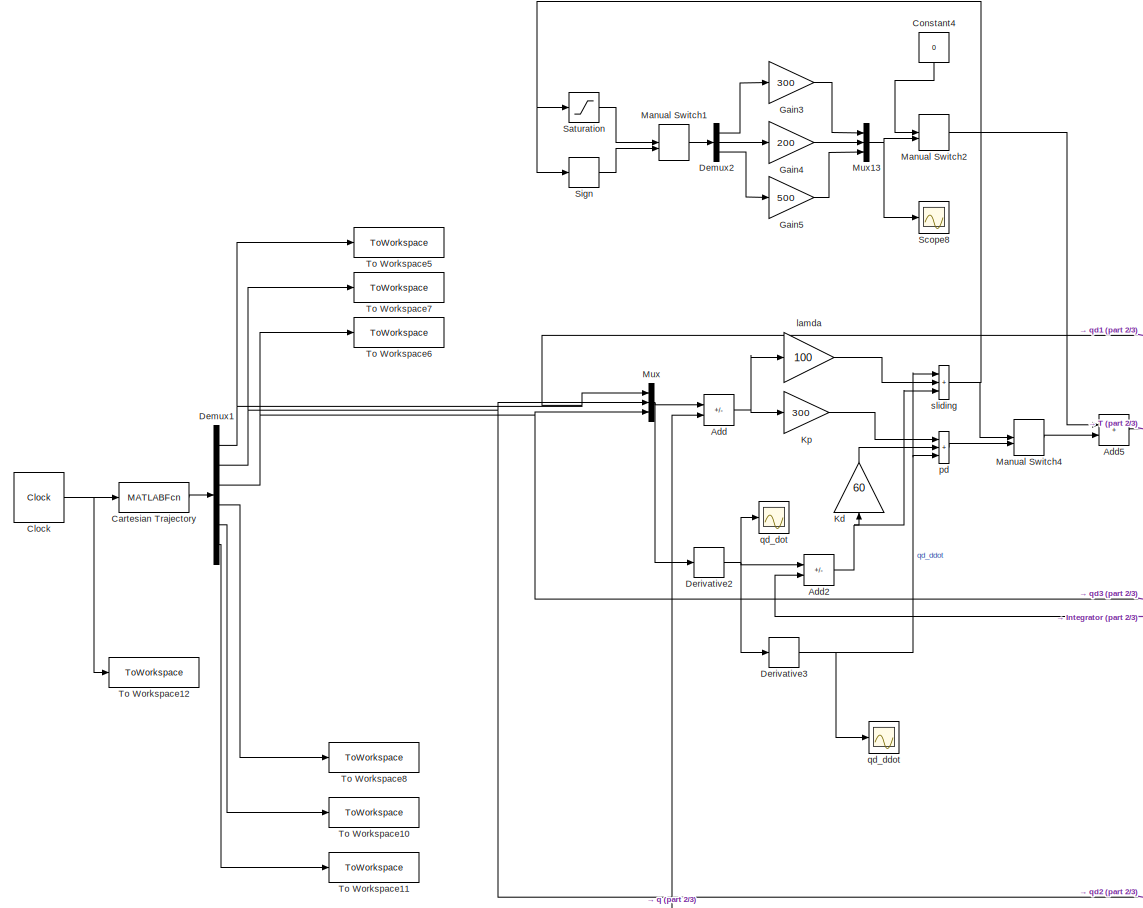
[diagram: root canvas - part 1/3, left side, full height]
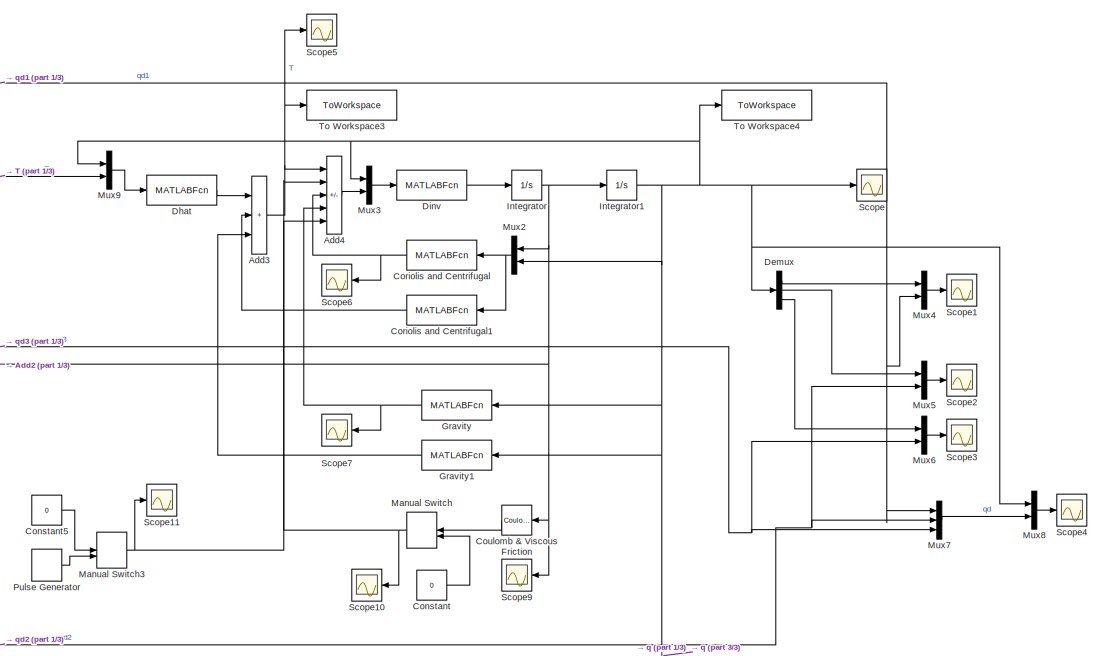
[diagram: root canvas - part 2/3, middle right region]
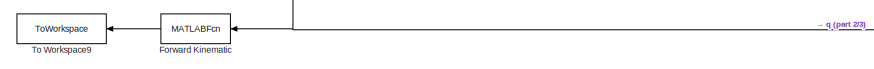
[diagram: root canvas - part 3/3, bottom center region]
MODEL slx_8cb4943e1e25
KIND model
CONFIG AbsTol = auto
CONFIG EnableMultiTasking = off
CONFIG FixedStep = auto
CONFIG MaxStep = auto
CONFIG MinStep = auto
CONFIG RelTol = 1e-3
CONFIG SampleTimeConstraint = Unconstrained
CONFIG SolverName = ode3
CONFIG StartTime = 0.0
CONFIG StopTime = 2*pi
BLOCK [Sum] Add
  IconShape = rectangular
  Inputs = +-
BLOCK [Sum] Add2
  IconShape = rectangular
  Inputs = +-
BLOCK [Sum] Add3
  IconShape = rectangular
  Inputs = +++
BLOCK [Sum] Add4
  IconShape = rectangular
  Inputs = +----
BLOCK [Sum] Add5
  IconShape = rectangular
BLOCK [MATLABFcn] Cartesian Trajectory
  MATLABFcn = Cartesian_trajectory(u)
  Output1D = off
  OutputDimensions = 6
BLOCK [Clock] Clock
  Decimation = 1
BLOCK [Constant] Constant
  Value = 0
BLOCK [Constant] Constant4
  NameLocation = left
  Value = 0
BLOCK [Constant] Constant5
  Value = 0
BLOCK [MATLABFcn] Coriolis and Centrifugal
  MATLABFcn = Coriolis3(u)
  Output1D = off
  OutputDimensions = 3
BLOCK [MATLABFcn] Coriolis and Centrifugal1
  MATLABFcn = Coriolis3(u)
  Output1D = off
  OutputDimensions = 3
BLOCK [Reference] Coulomb & Viscous Friction  REF=simulink/Discontinuities/Coulomb &
Viscous Friction
  SourceBlock = simulink/Discontinuities/Coulomb &\nViscous Friction
  SourceType = Coulombic and Viscous Friction
BLOCK [Demux] Demux
  Outputs = 3
BLOCK [Demux] Demux1
  Outputs = 6
BLOCK [Demux] Demux2
  Outputs = 3
BLOCK [Derivative] Derivative2
BLOCK [Derivative] Derivative3
BLOCK [MATLABFcn] Dhat
  MATLABFcn = Dhat3(u)
  Output1D = off
  OutputDimensions = 3
BLOCK [MATLABFcn] Dinv
  MATLABFcn = Dinv3(u)
  Output1D = off
  OutputDimensions = 3
BLOCK [MATLABFcn] Forward Kinematic
  MATLABFcn = Forward_kin3(u)
  Output1D = off
  OutputDimensions = 3
BLOCK [Gain] Gain3
  Gain = 300
BLOCK [Gain] Gain4
  Gain = 200
BLOCK [Gain] Gain5
  Gain = 500
BLOCK [MATLABFcn] Gravity
  MATLABFcn = Gravity3(u)
  Output1D = off
  OutputDimensions = 3
BLOCK [MATLABFcn] Gravity1
  MATLABFcn = Gravity3(u)
  Output1D = off
  OutputDimensions = 3
BLOCK [Integrator] Integrator
  InitialCondition = [0;0;0];
BLOCK [Integrator] Integrator1
  InitialCondition = [0.9587;0.7246;-1.1694]
BLOCK [Gain] Kd
  Gain = 60
  NameLocation = right
BLOCK [Gain] Kp
  Gain = 300
BLOCK [ManualSwitch] Manual Switch
BLOCK [ManualSwitch] Manual Switch1
BLOCK [ManualSwitch] Manual Switch2
  CurrentSetting = 0
BLOCK [ManualSwitch] Manual Switch3
  CurrentSetting = 0
BLOCK [ManualSwitch] Manual Switch4
BLOCK [Mux] Mux
  DisplayOption = bar
  Inputs = 3
BLOCK [Mux] Mux13
  DisplayOption = bar
  Inputs = 3
BLOCK [Mux] Mux2
  DisplayOption = bar
  Inputs = 2
BLOCK [Mux] Mux3
  DisplayOption = bar
  Inputs = 2
BLOCK [Mux] Mux4
  DisplayOption = bar
  Inputs = 2
BLOCK [Mux] Mux5
  DisplayOption = bar
  Inputs = 2
BLOCK [Mux] Mux6
  DisplayOption = bar
  Inputs = 2
BLOCK [Mux] Mux7
  DisplayOption = bar
  Inputs = 3
BLOCK [Mux] Mux8
  DisplayOption = bar
  Inputs = 2
BLOCK [Mux] Mux9
  DisplayOption = bar
  Inputs = 2
BLOCK [DiscretePulseGenerator] Pulse Generator
  Amplitude = 100
  PhaseDelay = 2
  PulseType = Time based
  PulseWidth = 2
BLOCK [Saturate] Saturation
  LowerLimit = -1
  UpperLimit = 1
  ZeroCross = off
BLOCK [Scope] Scope
  Floating = off
  NumInputPorts = 1
  ScopeSpecificationString = Simulink.scopes.TimeScopeBlockCfg('CurrentConfiguration', extmgr.ConfigurationSet(extmgr.Configuration('Core','General UI',true,'FigureColor',[1 1 1]),extmgr.Configuration('Core','Source UI',true),extmgr.Configuration('Sources','WiredSimulink',true),extmgr.Configuration('Visuals','Time Domain',true,'SerializedDisplays',{struct('MinYLimReal','-2.64533','MaxYLimReal','1.54519','YLabelReal','','MinYL...<+1563ch>
BLOCK [Scope] Scope1
  Floating = off
  NumInputPorts = 1
  ScopeSpecificationString = Simulink.scopes.TimeScopeBlockCfg('CurrentConfiguration', extmgr.ConfigurationSet(extmgr.Configuration('Core','General UI',true,'FigureColor',[1 1 1]),extmgr.Configuration('Core','Source UI',true),extmgr.Configuration('Sources','WiredSimulink',true,'DataLoggingVariableName','ScopeData1'),extmgr.Configuration('Visuals','Time Domain',true,'SerializedDisplays',{struct('MinYLimReal','-1.07654','MaxYLi...<+1728ch>
BLOCK [Scope] Scope10
  Floating = off
  NumInputPorts = 1
  ScopeSpecificationString = Simulink.scopes.TimeScopeBlockCfg('CurrentConfiguration', extmgr.ConfigurationSet(extmgr.Configuration('Core','General UI',true,'FigureColor',[1 1 1]),extmgr.Configuration('Core','Source UI',true),extmgr.Configuration('Sources','WiredSimulink',true,'DataLoggingVariableName','ScopeData3'),extmgr.Configuration('Visuals','Time Domain',true,'SerializedDisplays',{struct('MinYLimReal','-61.2897','MaxYLi...<+1570ch>
BLOCK [Scope] Scope11
  Floating = off
  NumInputPorts = 1
  ScopeSpecificationString = Simulink.scopes.TimeScopeBlockCfg('CurrentConfiguration', extmgr.ConfigurationSet(extmgr.Configuration('Core','General UI',true,'FigureColor',[1 1 1]),extmgr.Configuration('Core','Source UI',true),extmgr.Configuration('Sources','WiredSimulink',true,'DataLoggingVariableName','ScopeData4'),extmgr.Configuration('Visuals','Time Domain',true,'SerializedDisplays',{struct('MinYLimReal','-12.5','MaxYLimRe...<+1519ch>
BLOCK [Scope] Scope2
  Floating = off
  NumInputPorts = 1
  ScopeSpecificationString = Simulink.scopes.TimeScopeBlockCfg('CurrentConfiguration', extmgr.ConfigurationSet(extmgr.Configuration('Core','General UI',true,'FigureColor',[1 1 1]),extmgr.Configuration('Core','Source UI',true),extmgr.Configuration('Sources','WiredSimulink',true,'DataLoggingVariableName','ScopeData2'),extmgr.Configuration('Visuals','Time Domain',true,'SerializedDisplays',{struct('MinYLimReal','0.47796','MaxYLim...<+1622ch>
BLOCK [Scope] Scope3
  Floating = off
  NumInputPorts = 1
  ScopeSpecificationString = Simulink.scopes.TimeScopeBlockCfg('CurrentConfiguration', extmgr.ConfigurationSet(extmgr.Configuration('Core','General UI',true,'FigureColor',[1 1 1]),extmgr.Configuration('Core','Source UI',true),extmgr.Configuration('Sources','WiredSimulink',true,'DataLoggingVariableName','ScopeData3'),extmgr.Configuration('Visuals','Time Domain',true,'SerializedDisplays',{struct('MinYLimReal','-2.38745','MaxYLi...<+1627ch>
BLOCK [Scope] Scope4
  Floating = off
  NumInputPorts = 1
  ScopeSpecificationString = Simulink.scopes.TimeScopeBlockCfg('CurrentConfiguration', extmgr.ConfigurationSet(extmgr.Configuration('Core','General UI',true,'FigureColor',[1 1 1]),extmgr.Configuration('Core','Source UI',true),extmgr.Configuration('Sources','WiredSimulink',true,'DataLoggingVariableName','ScopeData1'),extmgr.Configuration('Visuals','Time Domain',true,'SerializedDisplays',{struct('MinYLimReal','-2.62439','MaxYLi...<+1932ch>
BLOCK [Scope] Scope5
  Floating = off
  NumInputPorts = 1
  ScopeSpecificationString = Simulink.scopes.TimeScopeBlockCfg('CurrentConfiguration', extmgr.ConfigurationSet(extmgr.Configuration('Core','General UI',true,'FigureColor',[1 1 1]),extmgr.Configuration('Core','Source UI',true),extmgr.Configuration('Sources','WiredSimulink',true,'DataLoggingVariableName','ScopeData1'),extmgr.Configuration('Visuals','Time Domain',true,'SerializedDisplays',{struct('MinYLimReal','-859.82582','MaxY...<+1614ch>
BLOCK [Scope] Scope6
  Floating = off
  NumInputPorts = 1
  ScopeSpecificationString = Simulink.scopes.TimeScopeBlockCfg('CurrentConfiguration', extmgr.ConfigurationSet(extmgr.Configuration('Core','General UI',true,'FigureColor',[1 1 1]),extmgr.Configuration('Core','Source UI',true),extmgr.Configuration('Sources','WiredSimulink',true,'DataLoggingVariableName','ScopeData2'),extmgr.Configuration('Visuals','Time Domain',true,'SerializedDisplays',{struct('MinYLimReal','-3.63876','MaxYLi...<+1603ch>
BLOCK [Scope] Scope7
  Floating = off
  NumInputPorts = 1
  ScopeSpecificationString = Simulink.scopes.TimeScopeBlockCfg('CurrentConfiguration', extmgr.ConfigurationSet(extmgr.Configuration('Core','General UI',true,'FigureColor',[1 1 1]),extmgr.Configuration('Core','Source UI',true),extmgr.Configuration('Sources','WiredSimulink',true,'DataLoggingVariableName','ScopeData3'),extmgr.Configuration('Visuals','Time Domain',true,'SerializedDisplays',{struct('MinYLimReal','-49.74284','MaxYL...<+1558ch>
BLOCK [Scope] Scope8
  Floating = off
  NumInputPorts = 1
  ScopeSpecificationString = Simulink.scopes.TimeScopeBlockCfg('CurrentConfiguration', extmgr.ConfigurationSet(extmgr.Configuration('Core','General UI',true,'FigureColor',[1 1 1]),extmgr.Configuration('Core','Source UI',true),extmgr.Configuration('Sources','WiredSimulink',true,'DataLoggingVariableName','ScopeData1'),extmgr.Configuration('Visuals','Time Domain',true,'SerializedDisplays',{struct('MinYLimReal','-250.00000','MaxY...<+1622ch>
BLOCK [Scope] Scope9
  Floating = off
  NumInputPorts = 1
  ScopeSpecificationString = Simulink.scopes.TimeScopeBlockCfg('CurrentConfiguration', extmgr.ConfigurationSet(extmgr.Configuration('Core','General UI',true,'FigureColor',[1 1 1]),extmgr.Configuration('Core','Source UI',true),extmgr.Configuration('Sources','WiredSimulink',true,'DataLoggingVariableName','ScopeData2'),extmgr.Configuration('Visuals','Time Domain',true,'SerializedDisplays',{struct('MinYLimReal','-9.75794','MaxYLi...<+1561ch>
BLOCK [Signum] Sign
  ZeroCross = off
BLOCK [ToWorkspace] To Workspace10
  FixptAsFi = on
  MaxDataPoints = inf
  SampleTime = 0.001
  VariableName = yd
BLOCK [ToWorkspace] To Workspace11
  FixptAsFi = on
  MaxDataPoints = inf
  SampleTime = 0.001
  VariableName = zd
BLOCK [ToWorkspace] To Workspace12
  FixptAsFi = on
  MaxDataPoints = inf
  SampleTime = 0.001
  SaveFormat = Timeseries
  VariableName = t
BLOCK [ToWorkspace] To Workspace3
  FixptAsFi = on
  MaxDataPoints = inf
  SampleTime = 0.001
  SaveFormat = Timeseries
  VariableName = tq
BLOCK [ToWorkspace] To Workspace4
  FixptAsFi = on
  MaxDataPoints = inf
  SampleTime = 0.001
  SaveFormat = Timeseries
  VariableName = q
BLOCK [ToWorkspace] To Workspace5
  FixptAsFi = on
  MaxDataPoints = inf
  SampleTime = 0.001
  SaveFormat = Timeseries
  VariableName = qd1
BLOCK [ToWorkspace] To Workspace6
  FixptAsFi = on
  MaxDataPoints = inf
  SampleTime = 0.001
  SaveFormat = Timeseries
  VariableName = qd3
BLOCK [ToWorkspace] To Workspace7
  FixptAsFi = on
  MaxDataPoints = inf
  SampleTime = 0.001
  SaveFormat = Timeseries
  VariableName = qd2
BLOCK [ToWorkspace] To Workspace8
  FixptAsFi = on
  MaxDataPoints = inf
  SampleTime = 0.001
  VariableName = xd
BLOCK [ToWorkspace] To Workspace9
  FixptAsFi = on
  MaxDataPoints = inf
  SampleTime = 0.001
  VariableName = x
BLOCK [Gain] lamda
  Gain = 100
BLOCK [Sum] pd
  IconShape = rectangular
  Inputs = +++
BLOCK [Scope] qd_ddot
  Floating = off
  NumInputPorts = 1
  ScopeSpecificationString = Simulink.scopes.TimeScopeBlockCfg('CurrentConfiguration', extmgr.ConfigurationSet(extmgr.Configuration('Core','General UI',true,'FigureColor',[1 1 1]),extmgr.Configuration('Core','Source UI',true),extmgr.Configuration('Sources','WiredSimulink',true,'DataLoggingVariableName','ScopeData4'),extmgr.Configuration('Visuals','Time Domain',true,'SerializedDisplays',{struct('MinYLimReal','-2246655476.42895...<+1709ch>
BLOCK [Scope] qd_dot
  Floating = off
  NumInputPorts = 1
  ScopeSpecificationString = Simulink.scopes.TimeScopeBlockCfg('CurrentConfiguration', extmgr.ConfigurationSet(extmgr.Configuration('Core','General UI',true,'FigureColor',[1 1 1]),extmgr.Configuration('Core','Source UI',true),extmgr.Configuration('Sources','WiredSimulink',true,'DataLoggingVariableName','ScopeData5'),extmgr.Configuration('Visuals','Time Domain',true,'SerializedDisplays',{struct('MinYLimReal','-1.25','MaxYLimRe...<+1607ch>
BLOCK [Sum] sliding
  IconShape = rectangular
  Inputs = +++
NET Add2:1 -> Kd:1, sliding:3
NET Add3:1 -> Add4:1, Scope5:1, To Workspace3:1
LINE Add4:1 -> Mux3:2
LINE Add5:1 -> Mux9:2
NET Add:1 -> Kp:1, lamda:1
LINE Cartesian Trajectory:1 -> Demux1:1
NET Clock:1 -> Cartesian Trajectory:1, To Workspace12:1
LINE Constant4:1 -> Manual Switch2:1
LINE Constant5:1 -> Manual Switch3:1
LINE Constant:1 -> Manual Switch:2
LINE Coriolis and Centrifugal1:1 -> Add3:2
NET Coriolis and Centrifugal:1 -> Add4:3, Scope6:1
LINE Coulomb & Viscous Friction:1 -> Manual Switch:1
NET Demux1:1 -> Mux4:2, Mux7:1, Mux:1, To Workspace5:1
NET Demux1:2 -> Mux5:2, Mux7:2, Mux:2, To Workspace7:1
NET Demux1:3 -> Mux6:2, Mux7:3, Mux:3, To Workspace6:1
LINE Demux1:4 -> To Workspace8:1
LINE Demux1:5 -> To Workspace10:1
LINE Demux1:6 -> To Workspace11:1
LINE Demux2:1 -> Gain3:1
LINE Demux2:2 -> Gain4:1
LINE Demux2:3 -> Gain5:1
LINE Demux:1 -> Mux4:1
LINE Demux:2 -> Mux5:1
LINE Demux:3 -> Mux6:1
NET Derivative2:1 -> Add2:1, Derivative3:1, qd_dot:1
NET Derivative3:1 -> pd:3, qd_ddot:1, sliding:1
LINE Dhat:1 -> Add3:1
LINE Dinv:1 -> Integrator:1
LINE Forward Kinematic:1 -> To Workspace9:1
LINE Gain3:1 -> Mux13:1
LINE Gain4:1 -> Mux13:2
LINE Gain5:1 -> Mux13:3
LINE Gravity1:1 -> Add3:3
NET Gravity:1 -> Add4:4, Scope7:1
NET Integrator1:1 -> Add:2, Demux:1, Forward Kinematic:1, Gravity1:1, Gravity:1, Mux2:2, Mux3:1, Mux8:1, Mux9:1, Scope:1, To Workspace4:1
NET Integrator:1 -> Add2:2, Coulomb & Viscous Friction:1, Integrator1:1, Mux2:1, Scope9:1
LINE Kd:1 -> pd:2
LINE Kp:1 -> pd:1
LINE Manual Switch1:1 -> Demux2:1
LINE Manual Switch2:1 -> Add5:1
NET Manual Switch3:1 -> Add4:5, Scope11:1
LINE Manual Switch4:1 -> Add5:2
NET Manual Switch:1 -> Add4:2, Scope10:1
NET Mux13:1 -> Manual Switch2:2, Scope8:1
NET Mux2:1 -> Coriolis and Centrifugal1:1, Coriolis and Centrifugal:1
LINE Mux3:1 -> Dinv:1
LINE Mux4:1 -> Scope1:1
LINE Mux5:1 -> Scope2:1
LINE Mux6:1 -> Scope3:1
LINE Mux7:1 -> Mux8:2
LINE Mux8:1 -> Scope4:1
LINE Mux9:1 -> Dhat:1
NET Mux:1 -> Add:1, Derivative2:1
LINE Pulse Generator:1 -> Manual Switch3:2
LINE Saturation:1 -> Manual Switch1:1
LINE Sign:1 -> Manual Switch1:2
LINE lamda:1 -> sliding:2
LINE pd:1 -> Manual Switch4:2
NET sliding:1 -> Manual Switch4:1, Saturation:1, Sign:1
note: NET lines group one-source signal fan-out (src -> all destinations, sorted); 1:1 wires keep LINE
